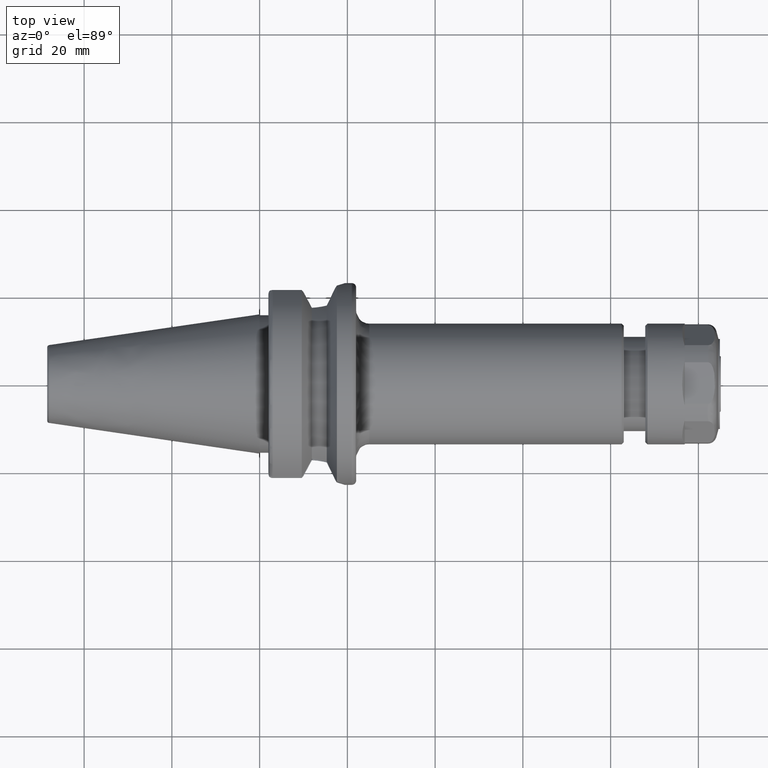
[diagram: clean part render]
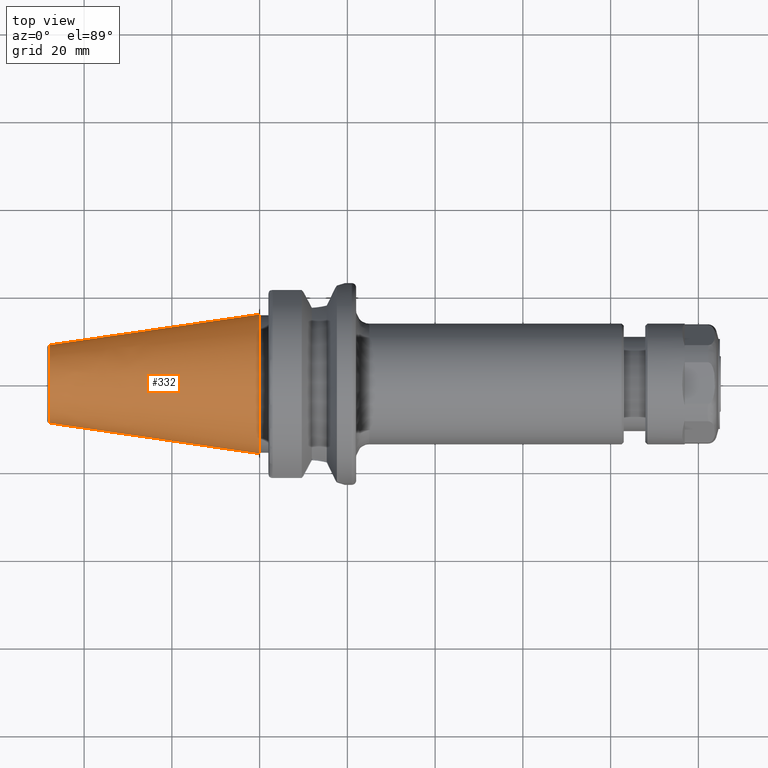
[diagram: same view with one face highlighted and labeled with its STEP entity id]
A machine part, top view. The second image highlights one B-rep face of the part: STEP entity #332.
In plain terms, the highlighted face is a freeform B-spline surface patch.
Its self-contained STEP definition (entity closure, byte-faithful):
#332=ADVANCED_FACE('',(#1856),#1855,.T.);
#1855=( BOUNDED_SURFACE() B_SPLINE_SURFACE( 2,1,((#3565,#3566),(#3567,#3568),(#3569,#3570),(#3571,#3572),(#3573,#3574)), .UNSPECIFIED.,.F.,.F.,.F.) B_SPLINE_SURFACE_WITH_KNOTS((3,2,3),(2,2),(0.00000000000E+00,5.00000000000E-01,1.00000000000E+00),(0.00000000000E+00,1.00000000000E+00), .UNSPECIFIED. ) GEOMETRIC_REPRESENTATION_ITEM() RATIONAL_B_SPLINE_SURFACE(((1.00000000000E+00,1.00000000000E+00),(7.07106781187E-01,7.07106781187E-01),(1.00000000000E+00,1.00000000000E+00),(7.07106781187E-01,7.07106781187E-01),(1.00000000000E+00,1.00000000000E+00))) REPRESENTATION_ITEM('') SURFACE() );
#1856=FACE_OUTER_BOUND('',#3575,.T.);
#3565=CARTESIAN_POINT('',(-4.79722863724E+01,8.87898740389E+00,5.03042485085E-15));
#3566=CARTESIAN_POINT('',(-1.00000000003E-04,1.58750000000E+01,8.99404300002E-15));
#3567=CARTESIAN_POINT('',(-4.79722863724E+01,8.87898740389E+00,8.87898740389E+00));
#3568=CARTESIAN_POINT('',(-1.00000000003E-04,1.58750000000E+01,1.58750000000E+01));
#3569=CARTESIAN_POINT('',(-4.79722863724E+01,-4.48674367566E-15,8.87898740389E+00));
#3570=CARTESIAN_POINT('',(-1.00000000003E-04,-8.02197960319E-15,1.58750000000E+01));
#3571=CARTESIAN_POINT('',(-4.79722863724E+01,-8.87898740389E+00,8.87898740389E+00));
#3572=CARTESIAN_POINT('',(-1.00000000003E-04,-1.58750000000E+01,1.58750000000E+01));
#3573=CARTESIAN_POINT('',(-4.79722863724E+01,-8.87898740389E+00,-3.94306250046E-15));
#3574=CARTESIAN_POINT('',(-1.00000000003E-04,-1.58750000000E+01,-7.04991620637E-15));
#3575=EDGE_LOOP('',(#4668,#4669,#4670,#4671));
#4668=ORIENTED_EDGE('',*,*,#5217,.T.);
#4669=ORIENTED_EDGE('',*,*,#5218,.T.);
#4670=ORIENTED_EDGE('',*,*,#5113,.F.);
#4671=ORIENTED_EDGE('',*,*,#5219,.F.);
#5113=EDGE_CURVE('',#6911,#6912,#6913,.T.);
#5217=EDGE_CURVE('',#7577,#7576,#7596,.T.);
#5218=EDGE_CURVE('',#7576,#6912,#7602,.T.);
#5219=EDGE_CURVE('',#7577,#6911,#7608,.T.);
#6911=VERTEX_POINT('',#9420);
#6912=VERTEX_POINT('',#9421);
#6913=CIRCLE('',#9425,1.58750000000E+01);
#7576=VERTEX_POINT('',#9846);
#7577=VERTEX_POINT('',#9847);
#7596=CIRCLE('',#9863,8.87898740389E+00);
#7602=(BOUNDED_CURVE() B_SPLINE_CURVE(1,(#9864,#9865),.UNSPECIFIED.,.F.,.F.) B_SPLINE_CURVE_WITH_KNOTS((2,2),(0.00000000000E+00,1.00000000000E+00),.UNSPECIFIED.) CURVE() GEOMETRIC_REPRESENTATION_ITEM() RATIONAL_B_SPLINE_CURVE((1.00000000000E+00,1.00000000000E+00)) REPRESENTATION_ITEM('') );
#7608=(BOUNDED_CURVE() B_SPLINE_CURVE(1,(#9866,#9867),.UNSPECIFIED.,.F.,.F.) B_SPLINE_CURVE_WITH_KNOTS((2,2),(0.00000000000E+00,1.00000000000E+00),.UNSPECIFIED.) CURVE() GEOMETRIC_REPRESENTATION_ITEM() RATIONAL_B_SPLINE_CURVE((7.50000000000E-01,7.50000000000E-01)) REPRESENTATION_ITEM('') );
#9420=CARTESIAN_POINT('',(-1.00000000003E-04,1.58750000000E+01,0.00000000000E+00));
#9421=CARTESIAN_POINT('',(-1.00000000003E-04,-1.58750000000E+01,1.18423789293E-15));
#9422=CARTESIAN_POINT('',(-1.00000000003E-04,0.00000000000E+00,0.00000000000E+00));
#9423=DIRECTION('',(1.00000000000E+00,0.00000000000E+00,0.00000000000E+00));
#9424=DIRECTION('',(0.00000000000E+00,1.00000000000E+00,-1.22464679915E-16));
#9425=AXIS2_PLACEMENT_3D('',#9422,#9423,#9424);
#9846=CARTESIAN_POINT('',(-4.79722863724E+01,-8.87898740389E+00,2.96059473233E-16));
#9847=CARTESIAN_POINT('',(-4.79722863724E+01,8.87898740389E+00,0.00000000000E+00));
#9860=CARTESIAN_POINT('',(-4.79722863724E+01,0.00000000000E+00,0.00000000000E+00));
#9861=DIRECTION('',(1.00000000000E+00,0.00000000000E+00,0.00000000000E+00));
#9862=DIRECTION('',(0.00000000000E+00,1.00000000000E+00,-1.22464679915E-16));
#9863=AXIS2_PLACEMENT_3D('',#9860,#9861,#9862);
#9864=CARTESIAN_POINT('',(-4.79722863724E+01,-8.87898740389E+00,-2.17472470077E-15));
#9865=CARTESIAN_POINT('',(-1.00000000003E-04,-1.58750000000E+01,-3.88825358729E-15));
#9866=CARTESIAN_POINT('',(-4.79722863724E+01,8.87898740389E+00,2.66453525910E-15));
#9867=CARTESIAN_POINT('',(-1.00000000003E-04,1.58750000000E+01,4.73695157173E-15));